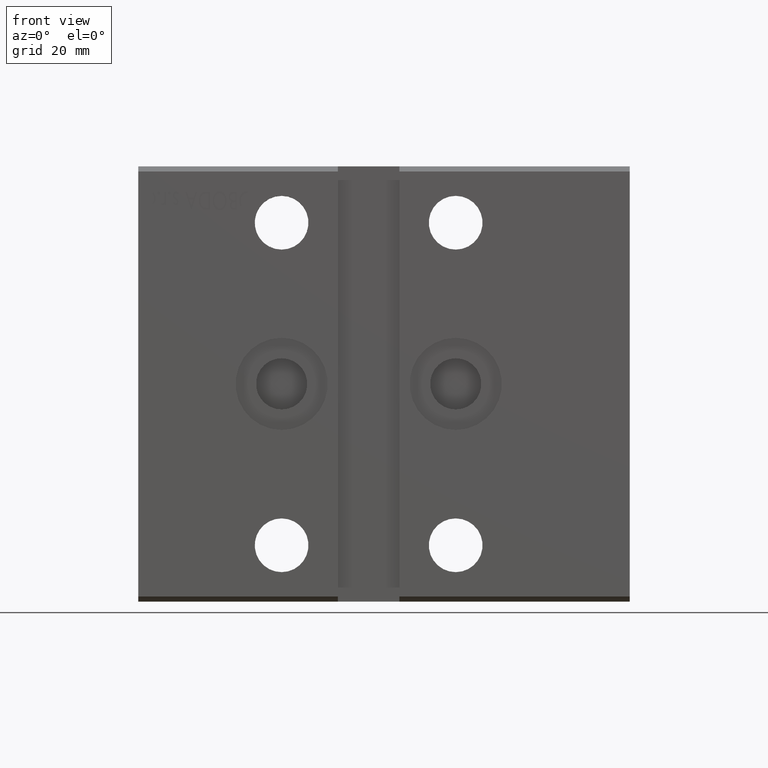
[diagram: clean part render]
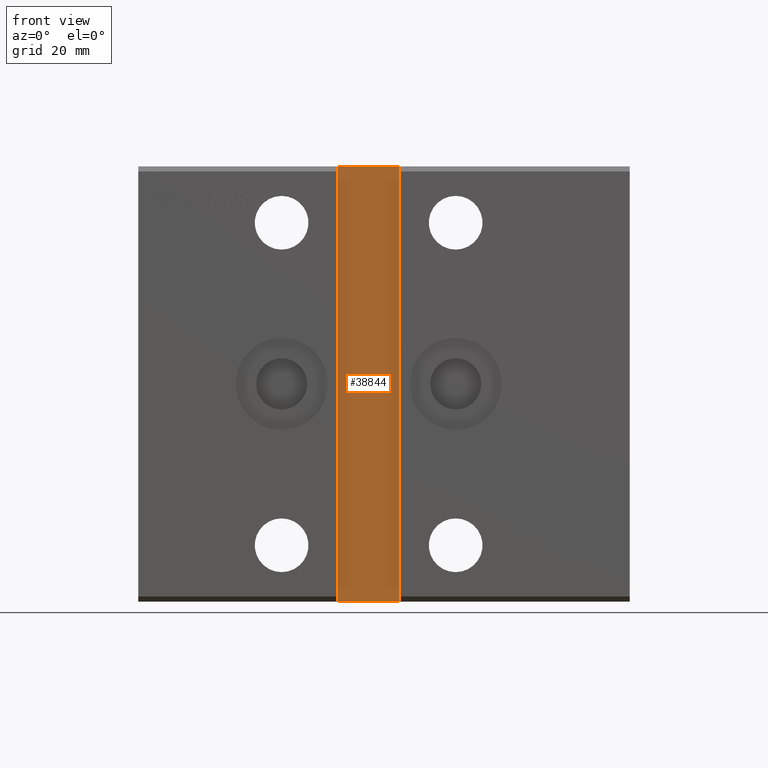
[diagram: same view with one face highlighted and labeled with its STEP entity id]
A machine part, front view. The second image highlights one B-rep face of the part: STEP entity #38844.
In plain terms, the highlighted planar face has unit normal (0, -1, 0).
Its self-contained STEP definition (entity closure, byte-faithful):
#113 = CARTESIAN_POINT ( 'NONE',  ( 39.00000000000001421, -29.50000000000000000, -42.50000000000000711 ) ) ;
#1327 = EDGE_CURVE ( 'NONE', #5912, #19562, #27424, .T. ) ;
#2496 = ORIENTED_EDGE ( 'NONE', *, *, #1327, .T. ) ;
#3163 = EDGE_CURVE ( 'NONE', #9205, #5912, #32031, .T. ) ;
#3577 = CARTESIAN_POINT ( 'NONE',  ( 51.00000000000000000, -29.50000000000000000, 42.49999999999999289 ) ) ;
#5114 = VECTOR ( 'NONE', #21053, 1000.000000000000000 ) ;
#5912 = VERTEX_POINT ( 'NONE', #3577 ) ;
#9205 = VERTEX_POINT ( 'NONE', #37774 ) ;
#10227 = CARTESIAN_POINT ( 'NONE',  ( 51.00000000000000000, -29.50000000000000000, 42.49999999999999289 ) ) ;
#10400 = VERTEX_POINT ( 'NONE', #113 ) ;
#11802 = ORIENTED_EDGE ( 'NONE', *, *, #34331, .T. ) ;
#11995 = LINE ( 'NONE', #30518, #5114 ) ;
#13122 = EDGE_CURVE ( 'NONE', #10400, #9205, #28078, .T. ) ;
#14569 = VECTOR ( 'NONE', #29766, 1000.000000000000000 ) ;
#18140 = FACE_OUTER_BOUND ( 'NONE', #20376, .T. ) ;
#19562 = VERTEX_POINT ( 'NONE', #28765 ) ;
#20376 = EDGE_LOOP ( 'NONE', ( #40010, #2496, #11802, #27720 ) ) ;
#21053 = DIRECTION ( 'NONE',  ( 1.632680918566406547E-16, 0.000000000000000000, -1.000000000000000000 ) ) ;
#22158 = AXIS2_PLACEMENT_3D ( 'NONE', #24321, #27401, #36244 ) ;
#24321 = CARTESIAN_POINT ( 'NONE',  ( 0.000000000000000000, -29.50000000000000000, 1.101411730778925047E-16 ) ) ;
#24738 = CARTESIAN_POINT ( 'NONE',  ( 39.00000000000000000, -29.50000000000000000, 42.49999999999999289 ) ) ;
#24997 = DIRECTION ( 'NONE',  ( 1.000000000000000000, 0.000000000000000000, 0.000000000000000000 ) ) ;
#25114 = VECTOR ( 'NONE', #27633, 1000.000000000000000 ) ;
#27319 = VECTOR ( 'NONE', #24997, 1000.000000000000000 ) ;
#27401 = DIRECTION ( 'NONE',  ( 0.000000000000000000, -1.000000000000000000, 0.000000000000000000 ) ) ;
#27424 = LINE ( 'NONE', #24738, #25114 ) ;
#27633 = DIRECTION ( 'NONE',  ( -1.000000000000000000, -0.000000000000000000, -0.000000000000000000 ) ) ;
#27720 = ORIENTED_EDGE ( 'NONE', *, *, #13122, .T. ) ;
#28078 = LINE ( 'NONE', #31370, #27319 ) ;
#28765 = CARTESIAN_POINT ( 'NONE',  ( 39.00000000000000000, -29.50000000000000000, 42.49999999999999289 ) ) ;
#29766 = DIRECTION ( 'NONE',  ( -8.163404592832032733E-17, -0.000000000000000000, 1.000000000000000000 ) ) ;
#30518 = CARTESIAN_POINT ( 'NONE',  ( 39.00000000000000000, -29.50000000000000000, 42.49999999999999289 ) ) ;
#30696 = PLANE ( 'NONE',  #22158 ) ;
#31370 = CARTESIAN_POINT ( 'NONE',  ( 39.00000000000001421, -29.50000000000000000, -42.50000000000000711 ) ) ;
#32031 = LINE ( 'NONE', #10227, #14569 ) ;
#34331 = EDGE_CURVE ( 'NONE', #19562, #10400, #11995, .T. ) ;
#36244 = DIRECTION ( 'NONE',  ( 0.000000000000000000, -0.000000000000000000, -1.000000000000000000 ) ) ;
#37774 = CARTESIAN_POINT ( 'NONE',  ( 51.00000000000000711, -29.50000000000000000, -42.50000000000000711 ) ) ;
#38844 = ADVANCED_FACE ( 'NONE', ( #18140 ), #30696, .T. ) ;
#40010 = ORIENTED_EDGE ( 'NONE', *, *, #3163, .T. ) ;